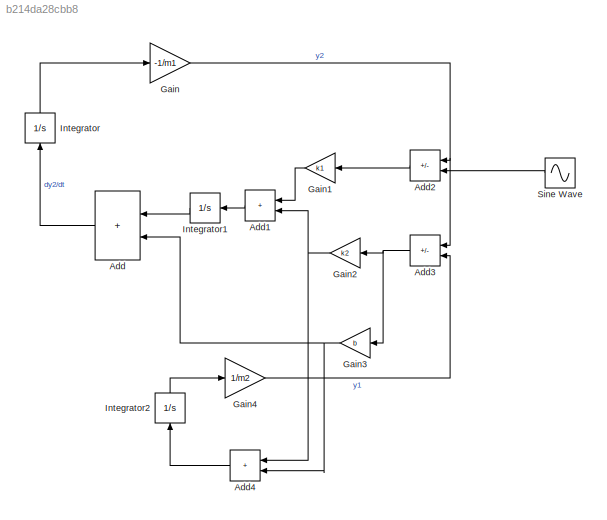
MODEL slx_b214da28cbb8
KIND model
CONFIG AbsTol = auto
CONFIG EnableMultiTasking = off
CONFIG FixedStep = auto
CONFIG MaxStep = auto
CONFIG MinStep = auto
CONFIG RelTol = 1e-3
CONFIG SampleTimeConstraint = Unconstrained
CONFIG SolverName = VariableStepAuto
CONFIG StartTime = 0.0
CONFIG StopTime = 100
BLOCK [Sum] Add
  IconShape = rectangular
  NameLocation = top
  Ports = [2, 1]
BLOCK [Sum] Add1
  IconShape = rectangular
  NameLocation = top
  Ports = [2, 1]
BLOCK [Sum] Add2
  IconShape = rectangular
  Inputs = +-
  NameLocation = top
  Ports = [2, 1]
BLOCK [Sum] Add3
  IconShape = rectangular
  Inputs = +-
  NameLocation = top
  Ports = [2, 1]
BLOCK [Sum] Add4
  IconShape = rectangular
  NameLocation = top
  Ports = [2, 1]
BLOCK [Gain] Gain
  Gain = -1/m1
BLOCK [Gain] Gain1
  Gain = k1
  NameLocation = top
BLOCK [Gain] Gain2
  Gain = k2
  NameLocation = top
BLOCK [Gain] Gain3
  Gain = b
  NameLocation = top
BLOCK [Gain] Gain4
  Gain = 1/m2
BLOCK [Integrator] Integrator
  NameLocation = right
  Ports = [1, 1]
BLOCK [Integrator] Integrator1
  NameLocation = top
  Ports = [1, 1]
BLOCK [Integrator] Integrator2
  NameLocation = right
  Ports = [1, 1]
BLOCK [Sin] Sine Wave
  Frequency = 50
  NameLocation = top
  Ports = [0, 1]
  SampleTime = 0
LINE Add1:1 -> Integrator1:1
LINE Add2:1 -> Gain1:1
NET Add3:1 -> Gain2:1, Gain3:1
LINE Add4:1 -> Integrator2:1
LINE Add:1 -> Integrator:1
LINE Gain1:1 -> Add1:1
NET Gain2:1 -> Add1:2, Add4:1
NET Gain3:1 -> Add4:2, Add:2
LINE Gain4:1 -> Add3:2
NET Gain:1 -> Add2:1, Add3:1
LINE Integrator1:1 -> Add:1
LINE Integrator2:1 -> Gain4:1
LINE Integrator:1 -> Gain:1
LINE Sine Wave:1 -> Add2:2
note: NET lines group one-source signal fan-out (src -> all destinations, sorted); 1:1 wires keep LINE
